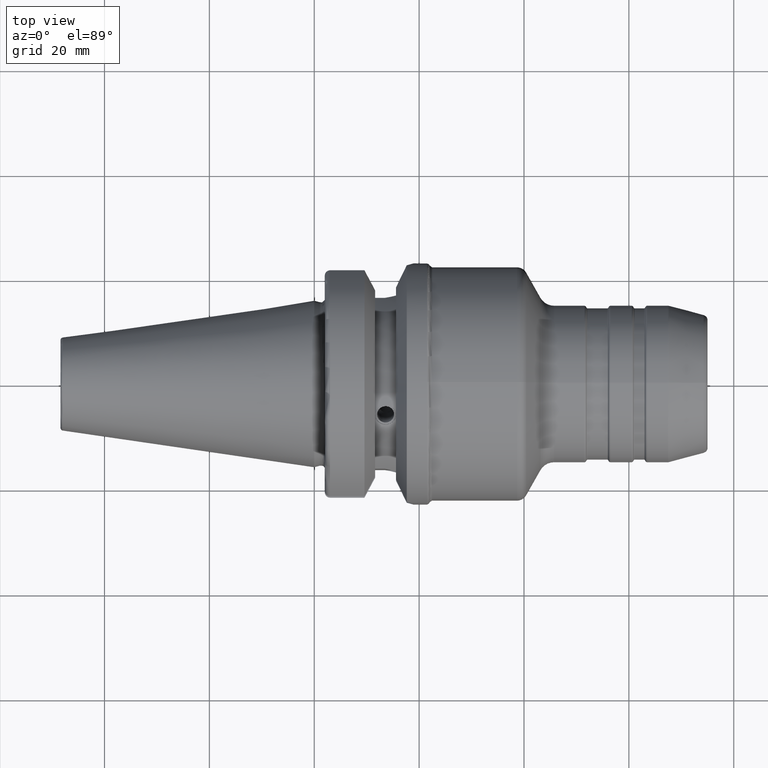
[diagram: clean part render]
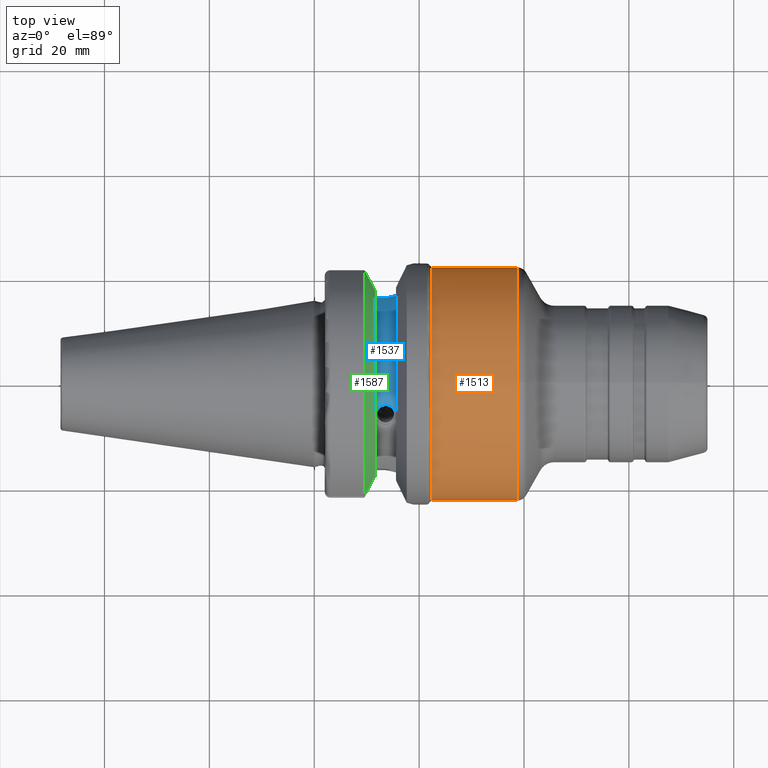
[diagram: same view with three faces highlighted in distinct colors, each labeled with its STEP entity id]
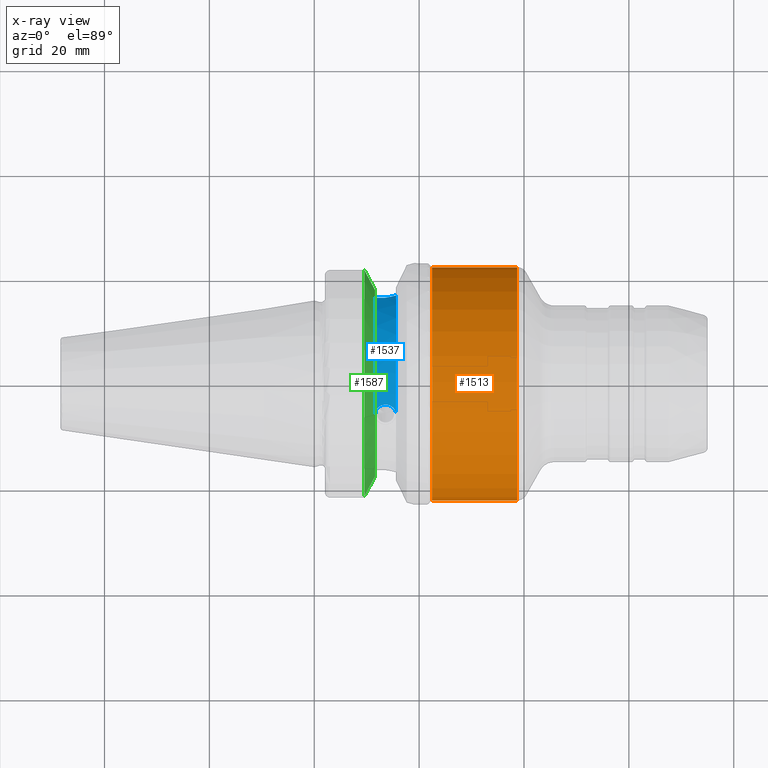
[diagram: x-ray of the same camera — body ghosted, the three highlighted faces saturated]
A machine part, top view with three faces highlighted in distinct colors.
The next image is the same camera in x-ray (body ghosted, the three faces saturated) — at least one of them is partly hidden behind the body in this view.
Their STEP definitions:

[orange] entity #1513 — the highlighted cylindrical surface (bore or boss wall) has radius 22.25 mm, axis along (1, 0, 0).
#127=LINE('',#2439,#202);
#202=VECTOR('',#1945,22.25);
#273=CYLINDRICAL_SURFACE('',#1660,22.25);
#325=FACE_OUTER_BOUND('',#420,.T.);
#420=EDGE_LOOP('',(#1072,#1073,#1074,#1075));
#536=CIRCLE('',#1659,22.25);
#537=CIRCLE('',#1661,22.25);
#635=VERTEX_POINT('',#2433);
#636=VERTEX_POINT('',#2437);
#799=EDGE_CURVE('',#635,#635,#536,.T.);
#800=EDGE_CURVE('',#636,#636,#537,.T.);
#801=EDGE_CURVE('',#636,#635,#127,.T.);
#1072=ORIENTED_EDGE('',*,*,#800,.F.);
#1073=ORIENTED_EDGE('',*,*,#801,.T.);
#1074=ORIENTED_EDGE('',*,*,#799,.F.);
#1075=ORIENTED_EDGE('',*,*,#801,.F.);
#1513=ADVANCED_FACE('',(#325),#273,.T.);
#1659=AXIS2_PLACEMENT_3D('',#2435,#1939,#1940);
#1660=AXIS2_PLACEMENT_3D('',#2436,#1941,#1942);
#1661=AXIS2_PLACEMENT_3D('',#2438,#1943,#1944);
#1939=DIRECTION('center_axis',(-1.,0.,0.));
#1940=DIRECTION('ref_axis',(0.,1.22464610627403E-16,-1.));
#1941=DIRECTION('center_axis',(1.,0.,0.));
#1942=DIRECTION('ref_axis',(0.,0.,-1.));
#1943=DIRECTION('center_axis',(1.,0.,0.));
#1944=DIRECTION('ref_axis',(0.,1.22464679914735E-16,1.));
#1945=DIRECTION('',(-1.,0.,0.));
#2433=CARTESIAN_POINT('',(22.4682458365518,2.08177211288445E-15,22.25));
#2435=CARTESIAN_POINT('Origin',(22.4682458365518,2.0817705712413E-15,0.));
#2436=CARTESIAN_POINT('Origin',(30.9071052741876,0.,0.));
#2437=CARTESIAN_POINT('',(38.659510009996,-2.72483912810286E-15,22.25));
#2438=CARTESIAN_POINT('Origin',(38.659510009996,0.,0.));
#2439=CARTESIAN_POINT('',(30.9071052741876,-2.72483912810286E-15,22.25));

[blue] entity #1537 — the highlighted cylindrical surface (partial cylindrical patch) has radius 18 mm, axis along (1, 0, 0).
#45=B_SPLINE_CURVE_WITH_KNOTS('',3,(#2586,#2587,#2588,#2589,#2590,#2591,
#2592,#2593,#2594,#2595,#2596,#2597,#2598,#2599,#2600,#2601,#2602,#2603),
 .UNSPECIFIED.,.F.,.F.,(4,2,2,2,2,2,2,2,4),(0.301616805591308,0.377020810963282,
0.452424816335256,0.527829213758936,0.603233611182616,0.678638008606296,
0.754042406029977,0.829446411401951,0.904850416773925),.UNSPECIFIED.);
#48=B_SPLINE_CURVE_WITH_KNOTS('',3,(#2683,#2684,#2685,#2686,#2687,#2688),
 .UNSPECIFIED.,.F.,.F.,(4,2,4),(4.44885108089523,4.6204730535255,4.67703896920055),
 .UNSPECIFIED.);
#143=LINE('',#2690,#218);
#218=VECTOR('',#2077,10.);
#284=CYLINDRICAL_SURFACE('',#1718,18.);
#349=FACE_OUTER_BOUND('',#450,.T.);
#450=EDGE_LOOP('',(#1183,#1184,#1185,#1186,#1187));
#561=CIRCLE('',#1719,18.);
#562=CIRCLE('',#1720,18.);
#658=VERTEX_POINT('',#2583);
#659=VERTEX_POINT('',#2585);
#674=VERTEX_POINT('',#2680);
#675=VERTEX_POINT('',#2682);
#676=VERTEX_POINT('',#2689);
#836=EDGE_CURVE('',#659,#658,#45,.T.);
#859=EDGE_CURVE('',#674,#658,#561,.T.);
#860=EDGE_CURVE('',#674,#675,#48,.T.);
#861=EDGE_CURVE('',#675,#676,#143,.T.);
#862=EDGE_CURVE('',#676,#659,#562,.T.);
#1183=ORIENTED_EDGE('',*,*,#836,.T.);
#1184=ORIENTED_EDGE('',*,*,#859,.F.);
#1185=ORIENTED_EDGE('',*,*,#860,.T.);
#1186=ORIENTED_EDGE('',*,*,#861,.T.);
#1187=ORIENTED_EDGE('',*,*,#862,.T.);
#1537=ADVANCED_FACE('',(#349),#284,.T.);
#1718=AXIS2_PLACEMENT_3D('',#2679,#2073,#2074);
#1719=AXIS2_PLACEMENT_3D('',#2681,#2075,#2076);
#1720=AXIS2_PLACEMENT_3D('',#2691,#2078,#2079);
#2073=DIRECTION('center_axis',(1.,1.62798202122572E-21,0.));
#2074=DIRECTION('ref_axis',(0.,1.,0.));
#2075=DIRECTION('center_axis',(1.,1.62798202122572E-21,0.));
#2076=DIRECTION('ref_axis',(0.,0.,-1.));
#2077=DIRECTION('',(-1.,-1.62798202122572E-21,0.));
#2078=DIRECTION('center_axis',(1.,1.62798202122572E-21,0.));
#2079=DIRECTION('ref_axis',(0.,0.,-1.));
#2583=CARTESIAN_POINT('',(15.6,-6.15636257986203,16.9144671741463));
#2585=CARTESIAN_POINT('',(11.6,-6.15636257986395,16.9144671741456));
#2586=CARTESIAN_POINT('Ctrl Pts',(11.6,-6.15636257986204,16.9144671741463));
#2587=CARTESIAN_POINT('Ctrl Pts',(11.6,-5.92017395510955,17.0004328032285));
#2588=CARTESIAN_POINT('Ctrl Pts',(11.6502741541558,-5.66638994445906,17.0866270171134));
#2589=CARTESIAN_POINT('Ctrl Pts',(11.8544462906484,-5.19623089225241,17.2354281159616));
#2590=CARTESIAN_POINT('Ctrl Pts',(12.0083328280156,-4.97994110148113,17.2983199183638));
#2591=CARTESIAN_POINT('Ctrl Pts',(12.3632409698814,-4.63687000353515,17.3934218103306));
#2592=CARTESIAN_POINT('Ctrl Pts',(12.587996750585,-4.48716279851812,17.4320366703388));
#2593=CARTESIAN_POINT('Ctrl Pts',(13.08069335908,-4.28809828983861,17.4820692588007));
#2594=CARTESIAN_POINT('Ctrl Pts',(13.3486520085877,-4.23885707963151,17.4937729109091));
#2595=CARTESIAN_POINT('Ctrl Pts',(13.8513479914123,-4.23885707963151,17.4937729109091));
#2596=CARTESIAN_POINT('Ctrl Pts',(14.1193066409199,-4.28809828983861,17.4820692588007));
#2597=CARTESIAN_POINT('Ctrl Pts',(14.6120032494149,-4.48716279851812,17.4320366703388));
#2598=CARTESIAN_POINT('Ctrl Pts',(14.8367590301186,-4.63687000353515,17.3934218103306));
#2599=CARTESIAN_POINT('Ctrl Pts',(15.1916671719844,-4.97994110148113,17.2983199183638));
#2600=CARTESIAN_POINT('Ctrl Pts',(15.3455537093516,-5.19623089225241,17.2354281159616));
#2601=CARTESIAN_POINT('Ctrl Pts',(15.5497258458442,-5.66638994445906,17.0866270171134));
#2602=CARTESIAN_POINT('Ctrl Pts',(15.6,-5.92017395510956,17.0004328032285));
#2603=CARTESIAN_POINT('Ctrl Pts',(15.6,-6.15636257986204,16.9144671741463));
#2679=CARTESIAN_POINT('Origin',(13.6,2.08175771018334E-15,0.));
#2680=CARTESIAN_POINT('',(15.6,16.757684804292,6.57114906237867));
#2681=CARTESIAN_POINT('Origin',(15.6,2.08176096614738E-15,0.));
#2682=CARTESIAN_POINT('',(13.4980384612482,16.3,7.636098480245));
#2683=CARTESIAN_POINT('Ctrl Pts',(15.6,16.757684804292,6.57114906237867));
#2684=CARTESIAN_POINT('Ctrl Pts',(15.1240022455652,16.6256027426009,6.90798353944052));
#2685=CARTESIAN_POINT('Ctrl Pts',(14.6012065414299,16.4995936761885,7.19909968210666));
#2686=CARTESIAN_POINT('Ctrl Pts',(13.8692695970121,16.3611703468843,7.5045998651608));
#2687=CARTESIAN_POINT('Ctrl Pts',(13.6847796623189,16.329191641879,7.57378606195196));
#2688=CARTESIAN_POINT('Ctrl Pts',(13.4980384612482,16.3,7.636098480245));
#2689=CARTESIAN_POINT('',(11.6,16.3,7.636098480245));
#2690=CARTESIAN_POINT('',(13.6,16.3,7.636098480245));
#2691=CARTESIAN_POINT('Origin',(11.6,2.08175445421929E-15,0.));

[green] entity #1587 — the highlighted conical surface has half-angle 60.125 deg.
#15=(
BOUNDED_CURVE()
B_SPLINE_CURVE(2,(#2946,#2947,#2948),.UNSPECIFIED.,.F.,.F.)
B_SPLINE_CURVE_WITH_KNOTS((3,3),(0.,0.293084380504246),.UNSPECIFIED.)
CURVE()
GEOMETRIC_REPRESENTATION_ITEM()
RATIONAL_B_SPLINE_CURVE((1.,1.00176330635057,1.))
REPRESENTATION_ITEM('')
);
#18=(
BOUNDED_CURVE()
B_SPLINE_CURVE(2,(#3063,#3064,#3065),.UNSPECIFIED.,.F.,.F.)
B_SPLINE_CURVE_WITH_KNOTS((3,3),(0.,0.293084380504246),.UNSPECIFIED.)
CURVE()
GEOMETRIC_REPRESENTATION_ITEM()
RATIONAL_B_SPLINE_CURVE((1.,1.00176330634997,1.))
REPRESENTATION_ITEM('')
);
#57=B_SPLINE_CURVE_WITH_KNOTS('',3,(#2888,#2889,#2890,#2891,#2892,#2893),
 .UNSPECIFIED.,.F.,.F.,(4,2,4),(1.10704244252389,1.1108573462404,1.23909804538765),
 .UNSPECIFIED.);
#68=B_SPLINE_CURVE_WITH_KNOTS('',3,(#3043,#3044,#3045,#3046),
 .UNSPECIFIED.,.F.,.F.,(4,4),(5.0512271220615,5.18123969966481),
 .UNSPECIFIED.);
#117=CONICAL_SURFACE('',#1832,21.2331286619655,1.04937921276161);
#399=FACE_OUTER_BOUND('',#505,.T.);
#505=EDGE_LOOP('',(#1458,#1459,#1460,#1461,#1462,#1463));
#614=CIRCLE('',#1831,23.);
#615=CIRCLE('',#1833,19.466257323931);
#716=VERTEX_POINT('',#2884);
#718=VERTEX_POINT('',#2887);
#729=VERTEX_POINT('',#2945);
#743=VERTEX_POINT('',#3037);
#745=VERTEX_POINT('',#3041);
#748=VERTEX_POINT('',#3062);
#919=EDGE_CURVE('',#718,#716,#57,.T.);
#933=EDGE_CURVE('',#729,#718,#15,.T.);
#963=EDGE_CURVE('',#743,#745,#68,.T.);
#969=EDGE_CURVE('',#745,#748,#18,.T.);
#998=EDGE_CURVE('',#748,#729,#614,.T.);
#999=EDGE_CURVE('',#743,#716,#615,.T.);
#1458=ORIENTED_EDGE('',*,*,#919,.T.);
#1459=ORIENTED_EDGE('',*,*,#999,.F.);
#1460=ORIENTED_EDGE('',*,*,#963,.T.);
#1461=ORIENTED_EDGE('',*,*,#969,.T.);
#1462=ORIENTED_EDGE('',*,*,#998,.T.);
#1463=ORIENTED_EDGE('',*,*,#933,.T.);
#1587=ADVANCED_FACE('',(#399),#117,.T.);
#1831=AXIS2_PLACEMENT_3D('',#3123,#2349,#2350);
#1832=AXIS2_PLACEMENT_3D('',#3124,#2351,#2352);
#1833=AXIS2_PLACEMENT_3D('',#3125,#2353,#2354);
#2349=DIRECTION('center_axis',(1.,1.62798202122572E-21,0.));
#2350=DIRECTION('ref_axis',(0.,0.,-1.));
#2351=DIRECTION('center_axis',(-1.,-1.62798202122572E-21,0.));
#2352=DIRECTION('ref_axis',(0.,1.,0.));
#2353=DIRECTION('center_axis',(1.,1.62798202122572E-21,0.));
#2354=DIRECTION('ref_axis',(0.,0.,-1.));
#2884=CARTESIAN_POINT('',(11.6,-17.7357033748735,8.02371485036701));
#2887=CARTESIAN_POINT('',(10.95,-18.9595942383938,8.05));
#2888=CARTESIAN_POINT('Ctrl Pts',(10.95,-18.9595942383938,8.05));
#2889=CARTESIAN_POINT('Ctrl Pts',(10.9562557806344,-18.9477631556681,8.05));
#2890=CARTESIAN_POINT('Ctrl Pts',(10.9625118384736,-18.9359327756361,8.04999321957019));
#2891=CARTESIAN_POINT('Ctrl Pts',(11.1790865920839,-18.5264447527878,8.04947141492817));
#2892=CARTESIAN_POINT('Ctrl Pts',(11.3895462578573,-18.1300979399546,8.04076367811623));
#2893=CARTESIAN_POINT('Ctrl Pts',(11.6,-17.7357033748735,8.02371485036701));
#2945=CARTESIAN_POINT('',(9.57005904049381,-21.5452430944744,8.05));
#2946=CARTESIAN_POINT('Ctrl Pts',(9.57005904049381,-21.5452430944744,8.05));
#2947=CARTESIAN_POINT('Ctrl Pts',(10.3040741701992,-20.1811846958682,8.05));
#2948=CARTESIAN_POINT('Ctrl Pts',(10.95,-18.9595942383938,8.05));
#3037=CARTESIAN_POINT('',(11.6,17.7357033748735,8.02371485036701));
#3041=CARTESIAN_POINT('',(10.95,18.9595942383938,8.05));
#3043=CARTESIAN_POINT('Ctrl Pts',(11.6,17.7357033748735,8.02371485036701));
#3044=CARTESIAN_POINT('Ctrl Pts',(11.381492847094,18.1451901944475,8.04141608377791));
#3045=CARTESIAN_POINT('Ctrl Pts',(11.1645860488186,18.5537639441868,8.05));
#3046=CARTESIAN_POINT('Ctrl Pts',(10.95,18.9595942383938,8.05));
#3062=CARTESIAN_POINT('',(9.57005904049381,21.5452430944744,8.05));
#3063=CARTESIAN_POINT('Ctrl Pts',(10.95,18.9595942383938,8.05));
#3064=CARTESIAN_POINT('Ctrl Pts',(10.304074170198,20.1811846958705,8.05));
#3065=CARTESIAN_POINT('Ctrl Pts',(9.57005904049381,21.5452430944744,8.05));
#3123=CARTESIAN_POINT('Origin',(9.57005904049381,2.08175114951191E-15,0.));
#3124=CARTESIAN_POINT('Origin',(10.5850295202469,2.0817528018656E-15,0.));
#3125=CARTESIAN_POINT('Origin',(11.6,2.08175445421929E-15,0.));